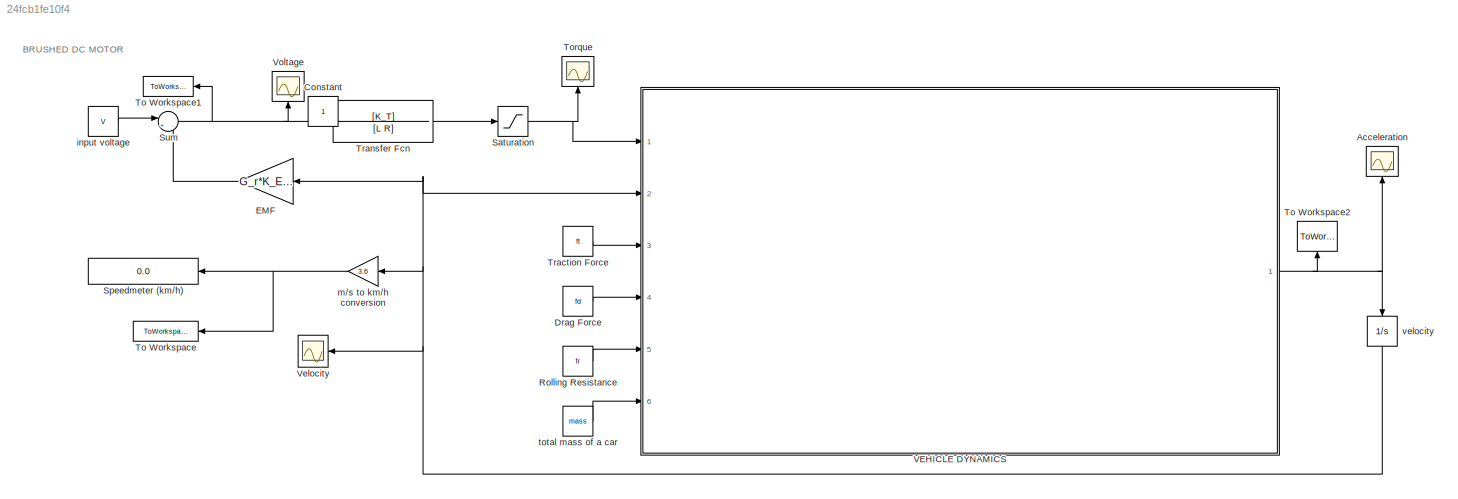
MODEL slx_24fcb1fe10f4
KIND model
CONFIG AbsTol = auto
CONFIG EnableMultiTasking = off
CONFIG FixedStep = auto
CONFIG MaxStep = auto
CONFIG MinStep = auto
CONFIG RelTol = 1e-3
CONFIG SampleTimeConstraint = Unconstrained
CONFIG Solver = VariableStepAuto
CONFIG SolverName = VariableStepAuto
CONFIG StartTime = 0.0
CONFIG StopTime = time
BLOCK [Scope] Acceleration
  NumInputPorts = 1
  Ports = [1]
  ScopeSpecificationString = Simulink.scopes.TimeScopeBlockCfg('CurrentConfiguration', extmgr.ConfigurationSet(extmgr.Configuration('Core','General UI',true),extmgr.Configuration('Core','Source UI',true),extmgr.Configuration('Sources','WiredSimulink',true,'DataLoggingVariableName','ScopeData1'),extmgr.Configuration('Visuals','Time Domain',true,'SerializedDisplays',{struct('MinYLimReal','-1.20758','MaxYLimReal','8.9062','YLabe...<+1427ch>
BLOCK [Constant] Constant
  IOType = siggen
BLOCK [Constant] Drag Force
  Value = fd
BLOCK [Gain] EMF
  Gain = G_r*K_E*(1/r)
  OutDataTypeStr = Inherit: Inherit via internal rule
  ParamDataTypeStr = Inherit: Inherit via internal rule
  SaturateOnIntegerOverflow = off
BLOCK [Constant] Rolling Resistance
  Value = fr
BLOCK [Saturate] Saturation
  InputPortMap = u0
  LowerLimit = lowLimit
  Ports = [1, 1]
  UpperLimit = uppLimit
BLOCK [Display] Speedmeter (km//h)
  Decimation = 1
  Ports = [1]
BLOCK [Sum] Sum
  IconShape = round
  InputSameDT = off
  Inputs = |+-
  OutDataTypeStr = Inherit: Inherit via internal rule
  Ports = [2, 1]
  SaturateOnIntegerOverflow = off
BLOCK [ToWorkspace] To Workspace
  FixptAsFi = on
  MaxDataPoints = inf
  Ports = [1]
  SampleTime = -1
  Save2DSignal = 2-D array (concatenate along first dimension)
  SaveFormat = Timeseries
  VariableName = vel
BLOCK [ToWorkspace] To Workspace1
  FixptAsFi = on
  MaxDataPoints = inf
  Ports = [1]
  SampleTime = -1
  Save2DSignal = 2-D array (concatenate along first dimension)
  SaveFormat = Timeseries
  VariableName = volt
BLOCK [ToWorkspace] To Workspace2
  FixptAsFi = on
  MaxDataPoints = inf
  Ports = [1]
  SampleTime = -1
  Save2DSignal = 3-D array (concatenate along third dimension)
  SaveFormat = Timeseries
  VariableName = acc
BLOCK [Scope] Torque
  NumInputPorts = 1
  Ports = [1]
  ScopeSpecificationString = Simulink.scopes.TimeScopeBlockCfg('CurrentConfiguration', extmgr.ConfigurationSet(extmgr.Configuration('Core','General UI',true),extmgr.Configuration('Core','Source UI',true),extmgr.Configuration('Sources','WiredSimulink',true),extmgr.Configuration('Visuals','Time Domain',true,'SerializedDisplays',{struct('MinYLimReal','-75.125','MaxYLimReal','676.125','YLabelReal','','MinYLimMag','0.00000','MaxYL...<+1358ch>
BLOCK [Constant] Traction Force
  Value = ft
BLOCK [TransferFcn] Transfer Fcn
  Denominator = [L R]
  Numerator = [K_T]
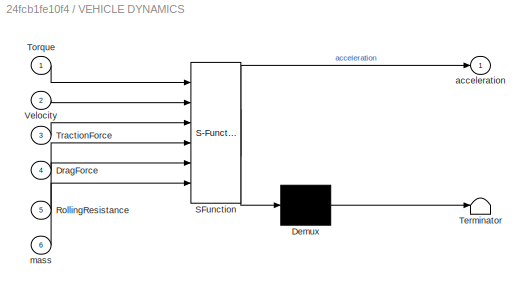
BLOCK [SubSystem] VEHICLE DYNAMICS
  ErrorFcn = Stateflow.Translate.translate
  PermitHierarchicalResolution = ExplicitOnly
  Ports = [6, 1]
  RequestExecContextInheritance = off
  SFBlockType = MATLAB Function
  TreatAsAtomicUnit = on
  Variant = off
BLOCK [Demux] VEHICLE DYNAMICS/ Demux 
  Outputs = 1
  Ports = [1, 1]
BLOCK [S-Function] VEHICLE DYNAMICS/ SFunction 
  EnableBusSupport = on
  FunctionName = sf_sfun
  PortCounts = [6 2]
  Ports = [6, 2]
  SFcnIsStateOwnerBlock = off
  SFunctionDeploymentMode = off
  Tag = Stateflow S-Function tesla_model 2
BLOCK [Terminator] VEHICLE DYNAMICS/ Terminator 
BLOCK [Inport] VEHICLE DYNAMICS/DragForce
  IconDisplay = Port number
  Port = 4
BLOCK [Inport] VEHICLE DYNAMICS/RollingResistance
  IconDisplay = Port number
  Port = 5
BLOCK [Inport] VEHICLE DYNAMICS/Torque
  IconDisplay = Port number
BLOCK [Inport] VEHICLE DYNAMICS/TractionForce
  IconDisplay = Port number
  Port = 3
BLOCK [Inport] VEHICLE DYNAMICS/Velocity
  IconDisplay = Port number
  Port = 2
BLOCK [Outport] VEHICLE DYNAMICS/acceleration
  IconDisplay = Port number
BLOCK [Inport] VEHICLE DYNAMICS/mass
  IconDisplay = Port number
  Port = 6
BLOCK [Scope] Velocity
  NumInputPorts = 1
  Ports = [1]
  ScopeSpecificationString = Simulink.scopes.TimeScopeBlockCfg('CurrentConfiguration', extmgr.ConfigurationSet(extmgr.Configuration('Core','General UI',true),extmgr.Configuration('Core','Source UI',true),extmgr.Configuration('Sources','WiredSimulink',true,'DataLoggingVariableName','ScopeData2'),extmgr.Configuration('Visuals','Time Domain',true,'SerializedDisplays',{struct('MinYLimReal','-8.83889','MaxYLimReal','79.54999','YLa...<+1401ch>
BLOCK [Scope] Voltage
  NumInputPorts = 1
  Ports = [1]
  ScopeSpecificationString = Simulink.scopes.TimeScopeBlockCfg('CurrentConfiguration', extmgr.ConfigurationSet(extmgr.Configuration('Core','General UI',true),extmgr.Configuration('Core','Source UI',true),extmgr.Configuration('Sources','WiredSimulink',true,'DataLoggingVariableName','ScopeData3'),extmgr.Configuration('Visuals','Time Domain',true,'SerializedDisplays',{struct('MinYLimReal','-41.4107','MaxYLimReal','388.60119','YL...<+1370ch>
BLOCK [Constant] input voltage
  Value = V
BLOCK [Gain] m//s to km//h conversion
  Gain = 3.6
  OutDataTypeStr = Inherit: Inherit via internal rule
  ParamDataTypeStr = Inherit: Inherit via internal rule
  SaturateOnIntegerOverflow = off
BLOCK [Constant] total mass of a car
  Value = mass
BLOCK [Integrator] velocity
  Ports = [1, 1]
ANNOTATION (root): BRUSHED DC MOTOR
LINE Drag Force:1 -> VEHICLE DYNAMICS:4
LINE EMF:1 -> Sum:2
LINE Rolling Resistance:1 -> VEHICLE DYNAMICS:5
NET Saturation:1 -> Torque:1, VEHICLE DYNAMICS:1
NET Sum:1 -> To Workspace1:1, Transfer Fcn:1, Voltage:1
LINE Traction Force:1 -> VEHICLE DYNAMICS:3
LINE Transfer Fcn:1 -> Saturation:1
NET VEHICLE DYNAMICS:1 -> Acceleration:1, To Workspace2:1, velocity:1
LINE input voltage:1 -> Sum:1
NET m//s to km//h conversion:1 -> Speedmeter (km//h):1, To Workspace:1
LINE total mass of a car:1 -> VEHICLE DYNAMICS:6
NET velocity:1 -> EMF:1, VEHICLE DYNAMICS:2, Velocity:1, m//s to km//h conversion:1
note: NET lines group one-source signal fan-out (src -> all destinations, sorted); 1:1 wires keep LINE
CHART VEHICLE DYNAMICS states=1 transitions=1
  STATE_LABEL 'eML_blk_kernel()'
  STATE_LABEL 'SCRIPT:\nfunction acceleration = acc(Torque, Velocity, TractionForce, DragForce, RollingResistance, mass)\n% Uses 2nd newton law: a = F/m\n% acceleration = (Traction Force - Drag Force - Roling Resistance)/mass\nacceleration = (Torque*TractionForce-DragForce*Velocity^2-RollingResistance)/mass;\n'
